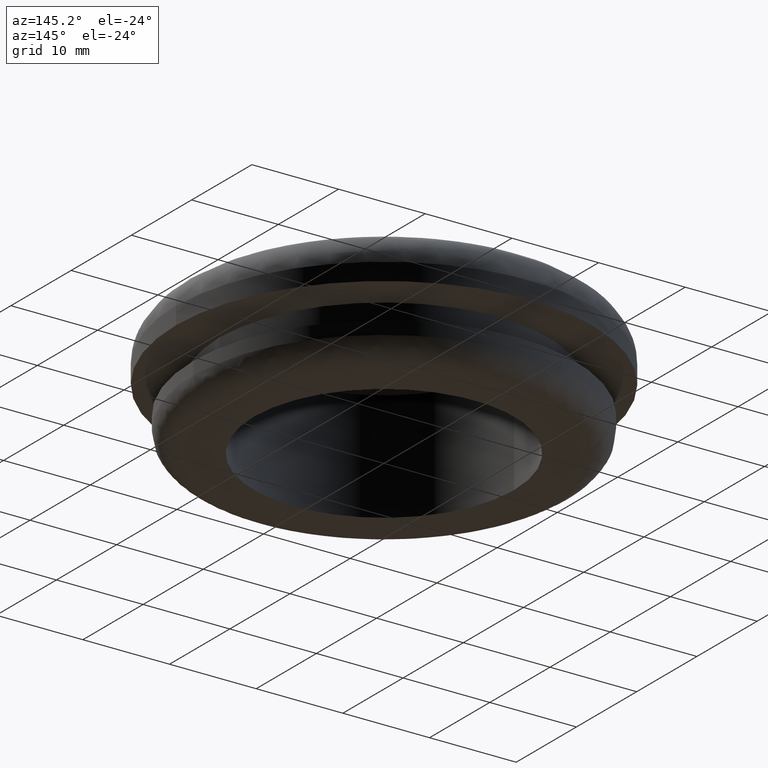
[diagram: clean part render]
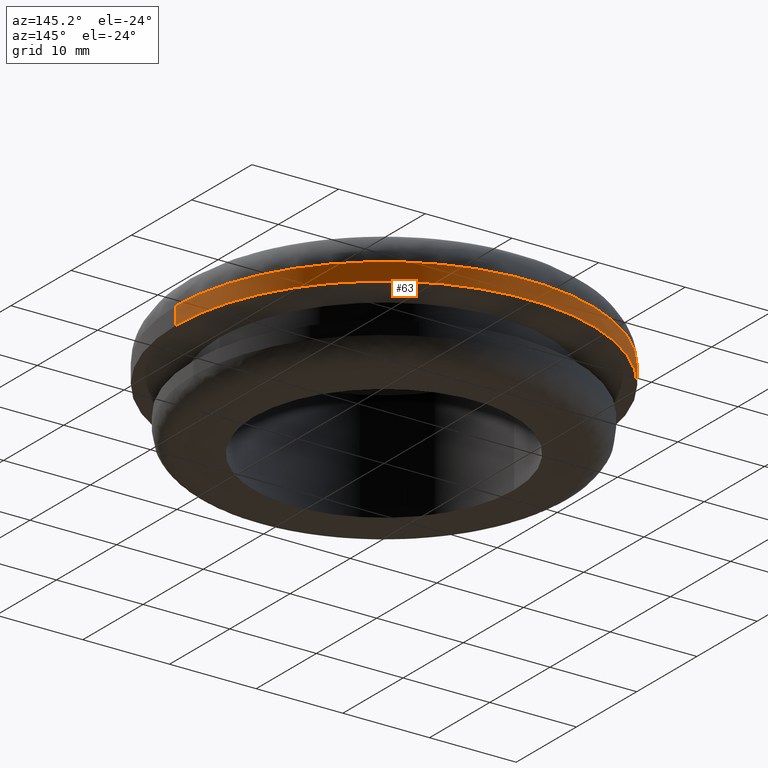
[diagram: same view with one face highlighted and labeled with its STEP entity id]
A machine part, auxiliary view. The second image highlights one B-rep face of the part: STEP entity #63.
In plain terms, the highlighted cylindrical surface (partial cylindrical patch) has radius 24 mm, axis along (0, -0, 1).
Its self-contained STEP definition (entity closure, byte-faithful):
#63=ADVANCED_FACE('',(#303),#302,.T.);
#302=CYLINDRICAL_SURFACE('',#633,2.40000000000E+001);
#303=FACE_OUTER_BOUND('',#634,.T.);
#630=CARTESIAN_POINT('',(0.00000000000E+000,0.00000000000E+000,0.00000000000E+000));
#631=DIRECTION('',(0.00000000000E+000,-0.00000000000E+000,1.00000000000E+000));
#632=DIRECTION('',(1.00000000000E+000,0.00000000000E+000,0.00000000000E+000));
#633=AXIS2_PLACEMENT_3D('',#630,#631,#632);
#634=EDGE_LOOP('',(#738,#739,#740,#741));
#738=ORIENTED_EDGE('',*,*,#801,.T.);
#739=ORIENTED_EDGE('',*,*,#802,.F.);
#740=ORIENTED_EDGE('',*,*,#770,.F.);
#741=ORIENTED_EDGE('',*,*,#803,.T.);
#770=EDGE_CURVE('',#918,#919,#920,.T.);
#801=EDGE_CURVE('',#1101,#1100,#1120,.T.);
#802=EDGE_CURVE('',#919,#1100,#1126,.T.);
#803=EDGE_CURVE('',#918,#1101,#1132,.T.);
#918=VERTEX_POINT('',#1230);
#919=VERTEX_POINT('',#1231);
#920=CIRCLE('',#1235,2.40000000000E+001);
#1100=VERTEX_POINT('',#1337);
#1101=VERTEX_POINT('',#1338);
#1120=CIRCLE('',#1354,2.40000000000E+001);
#1126=(BOUNDED_CURVE() B_SPLINE_CURVE(1,(#1355,#1356),.UNSPECIFIED.,.F.,.F.) B_SPLINE_CURVE_WITH_KNOTS((2,2),(8.33333134656E-002,9.16666653270E-001),.UNSPECIFIED.) CURVE() GEOMETRIC_REPRESENTATION_ITEM() RATIONAL_B_SPLINE_CURVE((1.00000000000E+000,1.00000000000E+000)) REPRESENTATION_ITEM('') );
#1132=(BOUNDED_CURVE() B_SPLINE_CURVE(1,(#1357,#1358),.UNSPECIFIED.,.F.,.F.) B_SPLINE_CURVE_WITH_KNOTS((2,2),(8.33333333333E-002,9.16666666667E-001),.UNSPECIFIED.) CURVE() GEOMETRIC_REPRESENTATION_ITEM() RATIONAL_B_SPLINE_CURVE((7.50000000000E-001,7.50000000000E-001)) REPRESENTATION_ITEM('') );
#1230=CARTESIAN_POINT('',(-2.40000000000E+001,0.00000000000E+000,7.20000000000E+000));
#1231=CARTESIAN_POINT('',(2.40000000000E+001,-1.18423789293E-015,7.20000000000E+000));
#1232=CARTESIAN_POINT('',(0.00000000000E+000,0.00000000000E+000,7.20000000000E+000));
#1233=DIRECTION('',(-0.00000000000E+000,0.00000000000E+000,-1.00000000000E+000));
#1234=DIRECTION('',(-1.00000000000E+000,-1.22460635382E-016,0.00000000000E+000));
#1235=AXIS2_PLACEMENT_3D('',#1232,#1233,#1234);
#1337=CARTESIAN_POINT('',(2.40000000000E+001,-1.18423789293E-015,9.20000000000E+000));
#1338=CARTESIAN_POINT('',(-2.40000000000E+001,0.00000000000E+000,9.20000000000E+000));
#1351=CARTESIAN_POINT('',(0.00000000000E+000,0.00000000000E+000,9.20000000000E+000));
#1352=DIRECTION('',(-0.00000000000E+000,0.00000000000E+000,-1.00000000000E+000));
#1353=DIRECTION('',(-1.00000000000E+000,-1.22460635382E-016,0.00000000000E+000));
#1354=AXIS2_PLACEMENT_3D('',#1351,#1352,#1353);
#1355=CARTESIAN_POINT('',(2.40000000000E+001,0.00000000000E+000,7.19999995232E+000));
#1356=CARTESIAN_POINT('',(2.40000000000E+001,0.00000000000E+000,9.19999996785E+000));
#1357=CARTESIAN_POINT('',(-2.40000000000E+001,-1.18423789293E-015,7.20000000000E+000));
#1358=CARTESIAN_POINT('',(-2.40000000000E+001,-1.18423789293E-015,9.20000000000E+000));